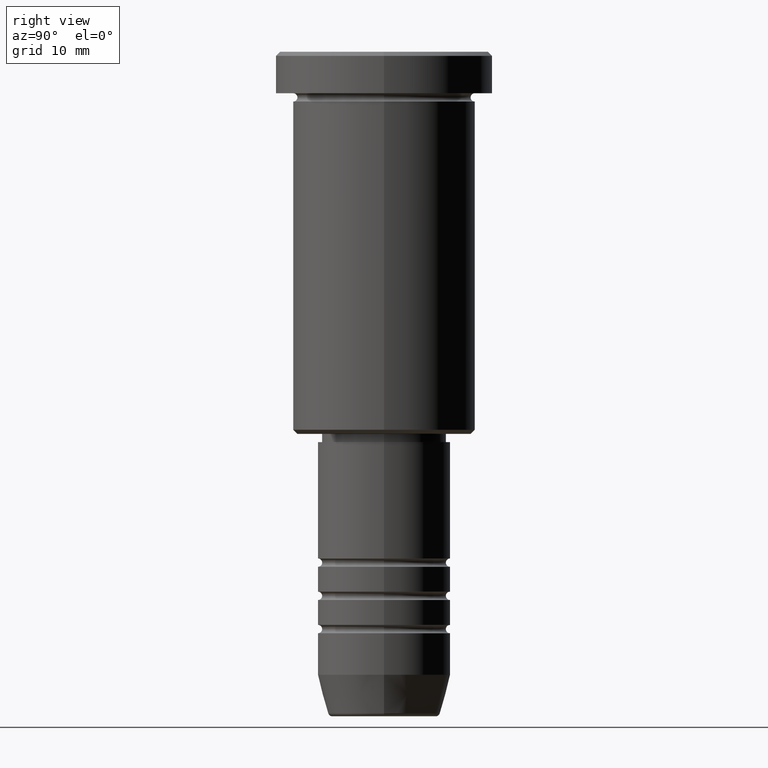
[diagram: clean part render]
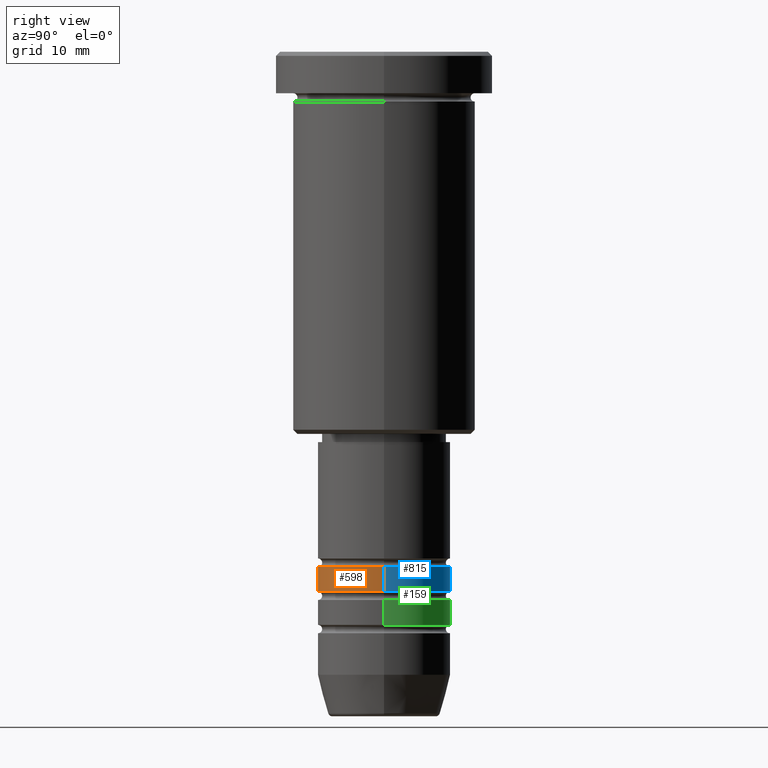
[diagram: same view with three faces highlighted in distinct colors, each labeled with its STEP entity id]
A machine part, right view with three faces highlighted in distinct colors.
Their STEP definitions:

[orange] entity #598 — the highlighted cylindrical surface (partial cylindrical patch) has radius 8 mm, axis along (-0, -0, 1).
#17 = VECTOR ( 'NONE', #618, 1000.000000000000000 ) ;
#38 = ORIENTED_EDGE ( 'NONE', *, *, #274, .F. ) ;
#68 = CIRCLE ( 'NONE', #378, 8.000000000000003553 ) ;
#136 = CARTESIAN_POINT ( 'NONE',  ( 0.000000000000000000, 0.000000000000000000, -62.00000000000000711 ) ) ;
#146 = DIRECTION ( 'NONE',  ( 1.000000000000000000, 0.000000000000000000, 0.000000000000000000 ) ) ;
#152 = CARTESIAN_POINT ( 'NONE',  ( -8.000000000000000000, 9.797174393178827630E-16, -62.00000000000000711 ) ) ;
#178 = AXIS2_PLACEMENT_3D ( 'NONE', #1023, #573, #305 ) ;
#192 = FACE_OUTER_BOUND ( 'NONE', #433, .T. ) ;
#205 = DIRECTION ( 'NONE',  ( -0.000000000000000000, -0.000000000000000000, 1.000000000000000000 ) ) ;
#216 = VERTEX_POINT ( 'NONE', #934 ) ;
#258 = AXIS2_PLACEMENT_3D ( 'NONE', #136, #417, #146 ) ;
#274 = EDGE_CURVE ( 'NONE', #801, #345, #1149, .T. ) ;
#305 = DIRECTION ( 'NONE',  ( 1.000000000000000000, 0.000000000000000000, 0.000000000000000000 ) ) ;
#319 = VERTEX_POINT ( 'NONE', #612 ) ;
#345 = VERTEX_POINT ( 'NONE', #152 ) ;
#348 = EDGE_CURVE ( 'NONE', #345, #216, #1124, .T. ) ;
#378 = AXIS2_PLACEMENT_3D ( 'NONE', #928, #205, #1112 ) ;
#417 = DIRECTION ( 'NONE',  ( -0.000000000000000000, -0.000000000000000000, 1.000000000000000000 ) ) ;
#433 = EDGE_LOOP ( 'NONE', ( #38, #908, #855, #1065 ) ) ;
#465 = EDGE_CURVE ( 'NONE', #319, #216, #1012, .T. ) ;
#559 = CYLINDRICAL_SURFACE ( 'NONE', #178, 8.000000000000001776 ) ;
#573 = DIRECTION ( 'NONE',  ( -0.000000000000000000, -0.000000000000000000, 1.000000000000000000 ) ) ;
#598 = ADVANCED_FACE ( 'NONE', ( #192 ), #559, .T. ) ;
#612 = CARTESIAN_POINT ( 'NONE',  ( 8.000000000000003553, 0.000000000000000000, -65.00000000000000000 ) ) ;
#618 = DIRECTION ( 'NONE',  ( -0.000000000000000000, -0.000000000000000000, 1.000000000000000000 ) ) ;
#799 = CARTESIAN_POINT ( 'NONE',  ( 8.000000000000001776, 0.000000000000000000, 0.000000000000000000 ) ) ;
#801 = VERTEX_POINT ( 'NONE', #963 ) ;
#855 = ORIENTED_EDGE ( 'NONE', *, *, #465, .T. ) ;
#908 = ORIENTED_EDGE ( 'NONE', *, *, #1092, .T. ) ;
#928 = CARTESIAN_POINT ( 'NONE',  ( 0.000000000000000000, 0.000000000000000000, -65.00000000000000000 ) ) ;
#934 = CARTESIAN_POINT ( 'NONE',  ( 8.000000000000000000, 0.000000000000000000, -62.00000000000000711 ) ) ;
#963 = CARTESIAN_POINT ( 'NONE',  ( -8.000000000000003553, 9.797174393178829602E-16, -65.00000000000000000 ) ) ;
#1012 = LINE ( 'NONE', #799, #1044 ) ;
#1023 = CARTESIAN_POINT ( 'NONE',  ( 0.000000000000000000, 0.000000000000000000, 0.000000000000000000 ) ) ;
#1044 = VECTOR ( 'NONE', #1172, 1000.000000000000000 ) ;
#1057 = CARTESIAN_POINT ( 'NONE',  ( -8.000000000000001776, 9.797174393178827630E-16, 0.000000000000000000 ) ) ;
#1065 = ORIENTED_EDGE ( 'NONE', *, *, #348, .F. ) ;
#1092 = EDGE_CURVE ( 'NONE', #801, #319, #68, .T. ) ;
#1112 = DIRECTION ( 'NONE',  ( 1.000000000000000000, 0.000000000000000000, 0.000000000000000000 ) ) ;
#1124 = CIRCLE ( 'NONE', #258, 8.000000000000000000 ) ;
#1149 = LINE ( 'NONE', #1057, #17 ) ;
#1172 = DIRECTION ( 'NONE',  ( -0.000000000000000000, -0.000000000000000000, 1.000000000000000000 ) ) ;

[blue] entity #815 — the highlighted cylindrical surface (partial cylindrical patch) has radius 8 mm, axis along (-0, -0, 1).
#14 = CIRCLE ( 'NONE', #32, 8.000000000000000000 ) ;
#17 = VECTOR ( 'NONE', #618, 1000.000000000000000 ) ;
#32 = AXIS2_PLACEMENT_3D ( 'NONE', #294, #207, #754 ) ;
#126 = CIRCLE ( 'NONE', #1142, 8.000000000000003553 ) ;
#152 = CARTESIAN_POINT ( 'NONE',  ( -8.000000000000000000, 9.797174393178827630E-16, -62.00000000000000711 ) ) ;
#155 = ORIENTED_EDGE ( 'NONE', *, *, #590, .F. ) ;
#162 = AXIS2_PLACEMENT_3D ( 'NONE', #223, #332, #593 ) ;
#207 = DIRECTION ( 'NONE',  ( -0.000000000000000000, -0.000000000000000000, 1.000000000000000000 ) ) ;
#215 = DIRECTION ( 'NONE',  ( -0.000000000000000000, -0.000000000000000000, 1.000000000000000000 ) ) ;
#216 = VERTEX_POINT ( 'NONE', #934 ) ;
#223 = CARTESIAN_POINT ( 'NONE',  ( 0.000000000000000000, 0.000000000000000000, 0.000000000000000000 ) ) ;
#245 = ORIENTED_EDGE ( 'NONE', *, *, #689, .T. ) ;
#274 = EDGE_CURVE ( 'NONE', #801, #345, #1149, .T. ) ;
#294 = CARTESIAN_POINT ( 'NONE',  ( 0.000000000000000000, 0.000000000000000000, -62.00000000000000711 ) ) ;
#310 = DIRECTION ( 'NONE',  ( 1.000000000000000000, 0.000000000000000000, 0.000000000000000000 ) ) ;
#312 = EDGE_LOOP ( 'NONE', ( #245, #859, #155, #524 ) ) ;
#319 = VERTEX_POINT ( 'NONE', #612 ) ;
#332 = DIRECTION ( 'NONE',  ( -0.000000000000000000, -0.000000000000000000, 1.000000000000000000 ) ) ;
#345 = VERTEX_POINT ( 'NONE', #152 ) ;
#399 = CARTESIAN_POINT ( 'NONE',  ( 0.000000000000000000, 0.000000000000000000, -65.00000000000000000 ) ) ;
#465 = EDGE_CURVE ( 'NONE', #319, #216, #1012, .T. ) ;
#491 = CYLINDRICAL_SURFACE ( 'NONE', #162, 8.000000000000001776 ) ;
#524 = ORIENTED_EDGE ( 'NONE', *, *, #465, .F. ) ;
#590 = EDGE_CURVE ( 'NONE', #216, #345, #14, .T. ) ;
#593 = DIRECTION ( 'NONE',  ( 1.000000000000000000, 0.000000000000000000, 0.000000000000000000 ) ) ;
#612 = CARTESIAN_POINT ( 'NONE',  ( 8.000000000000003553, 0.000000000000000000, -65.00000000000000000 ) ) ;
#618 = DIRECTION ( 'NONE',  ( -0.000000000000000000, -0.000000000000000000, 1.000000000000000000 ) ) ;
#689 = EDGE_CURVE ( 'NONE', #319, #801, #126, .T. ) ;
#754 = DIRECTION ( 'NONE',  ( 1.000000000000000000, 0.000000000000000000, 0.000000000000000000 ) ) ;
#783 = FACE_OUTER_BOUND ( 'NONE', #312, .T. ) ;
#799 = CARTESIAN_POINT ( 'NONE',  ( 8.000000000000001776, 0.000000000000000000, 0.000000000000000000 ) ) ;
#801 = VERTEX_POINT ( 'NONE', #963 ) ;
#815 = ADVANCED_FACE ( 'NONE', ( #783 ), #491, .T. ) ;
#859 = ORIENTED_EDGE ( 'NONE', *, *, #274, .T. ) ;
#934 = CARTESIAN_POINT ( 'NONE',  ( 8.000000000000000000, 0.000000000000000000, -62.00000000000000711 ) ) ;
#963 = CARTESIAN_POINT ( 'NONE',  ( -8.000000000000003553, 9.797174393178829602E-16, -65.00000000000000000 ) ) ;
#1012 = LINE ( 'NONE', #799, #1044 ) ;
#1044 = VECTOR ( 'NONE', #1172, 1000.000000000000000 ) ;
#1057 = CARTESIAN_POINT ( 'NONE',  ( -8.000000000000001776, 9.797174393178827630E-16, 0.000000000000000000 ) ) ;
#1142 = AXIS2_PLACEMENT_3D ( 'NONE', #399, #215, #310 ) ;
#1149 = LINE ( 'NONE', #1057, #17 ) ;
#1172 = DIRECTION ( 'NONE',  ( -0.000000000000000000, -0.000000000000000000, 1.000000000000000000 ) ) ;

[green] entity #159 — the highlighted cylindrical surface (partial cylindrical patch) has radius 8 mm, axis along (-0, -0, 1).
#26 = DIRECTION ( 'NONE',  ( -0.000000000000000000, -0.000000000000000000, 1.000000000000000000 ) ) ;
#33 = EDGE_CURVE ( 'NONE', #582, #786, #826, .T. ) ;
#90 = VECTOR ( 'NONE', #670, 1000.000000000000000 ) ;
#91 = DIRECTION ( 'NONE',  ( -0.000000000000000000, -0.000000000000000000, 1.000000000000000000 ) ) ;
#121 = DIRECTION ( 'NONE',  ( -0.000000000000000000, -0.000000000000000000, 1.000000000000000000 ) ) ;
#128 = AXIS2_PLACEMENT_3D ( 'NONE', #1024, #26, #313 ) ;
#159 = ADVANCED_FACE ( 'NONE', ( #1131 ), #289, .T. ) ;
#189 = VERTEX_POINT ( 'NONE', #470 ) ;
#191 = LINE ( 'NONE', #652, #90 ) ;
#240 = AXIS2_PLACEMENT_3D ( 'NONE', #381, #121, #1116 ) ;
#253 = DIRECTION ( 'NONE',  ( 1.000000000000000000, 0.000000000000000000, 0.000000000000000000 ) ) ;
#289 = CYLINDRICAL_SURFACE ( 'NONE', #128, 8.000000000000000000 ) ;
#313 = DIRECTION ( 'NONE',  ( 1.000000000000000000, 0.000000000000000000, 0.000000000000000000 ) ) ;
#370 = CARTESIAN_POINT ( 'NONE',  ( 0.000000000000000000, 0.000000000000000000, -66.00000000000000000 ) ) ;
#375 = CARTESIAN_POINT ( 'NONE',  ( -8.000000000000000000, 9.797174393178825657E-16, -69.00000000000000000 ) ) ;
#381 = CARTESIAN_POINT ( 'NONE',  ( 0.000000000000000000, 0.000000000000000000, -69.00000000000000000 ) ) ;
#388 = ORIENTED_EDGE ( 'NONE', *, *, #445, .F. ) ;
#445 = EDGE_CURVE ( 'NONE', #189, #786, #828, .T. ) ;
#470 = CARTESIAN_POINT ( 'NONE',  ( 8.000000000000000000, 0.000000000000000000, -66.00000000000000000 ) ) ;
#521 = ORIENTED_EDGE ( 'NONE', *, *, #1098, .T. ) ;
#569 = VECTOR ( 'NONE', #91, 1000.000000000000000 ) ;
#582 = VERTEX_POINT ( 'NONE', #375 ) ;
#600 = VERTEX_POINT ( 'NONE', #1035 ) ;
#647 = CIRCLE ( 'NONE', #240, 8.000000000000000000 ) ;
#652 = CARTESIAN_POINT ( 'NONE',  ( 8.000000000000000000, 0.000000000000000000, 0.000000000000000000 ) ) ;
#670 = DIRECTION ( 'NONE',  ( -0.000000000000000000, -0.000000000000000000, 1.000000000000000000 ) ) ;
#720 = AXIS2_PLACEMENT_3D ( 'NONE', #370, #1080, #253 ) ;
#776 = ORIENTED_EDGE ( 'NONE', *, *, #1056, .F. ) ;
#786 = VERTEX_POINT ( 'NONE', #971 ) ;
#811 = ORIENTED_EDGE ( 'NONE', *, *, #33, .T. ) ;
#826 = LINE ( 'NONE', #914, #569 ) ;
#828 = CIRCLE ( 'NONE', #720, 8.000000000000000000 ) ;
#914 = CARTESIAN_POINT ( 'NONE',  ( -8.000000000000000000, 9.797174393178825657E-16, 0.000000000000000000 ) ) ;
#971 = CARTESIAN_POINT ( 'NONE',  ( -8.000000000000000000, 9.797174393178825657E-16, -66.00000000000000000 ) ) ;
#1000 = EDGE_LOOP ( 'NONE', ( #521, #811, #388, #776 ) ) ;
#1024 = CARTESIAN_POINT ( 'NONE',  ( 0.000000000000000000, 0.000000000000000000, 0.000000000000000000 ) ) ;
#1035 = CARTESIAN_POINT ( 'NONE',  ( 8.000000000000000000, 0.000000000000000000, -69.00000000000000000 ) ) ;
#1056 = EDGE_CURVE ( 'NONE', #600, #189, #191, .T. ) ;
#1080 = DIRECTION ( 'NONE',  ( -0.000000000000000000, -0.000000000000000000, 1.000000000000000000 ) ) ;
#1098 = EDGE_CURVE ( 'NONE', #600, #582, #647, .T. ) ;
#1116 = DIRECTION ( 'NONE',  ( 1.000000000000000000, 0.000000000000000000, 0.000000000000000000 ) ) ;
#1131 = FACE_OUTER_BOUND ( 'NONE', #1000, .T. ) ;